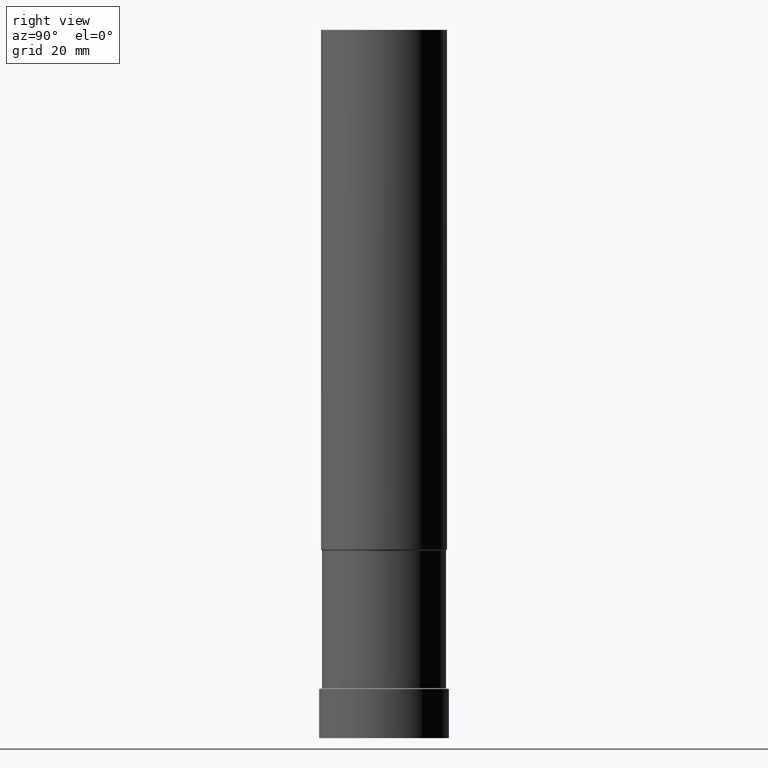
[diagram: clean part render]
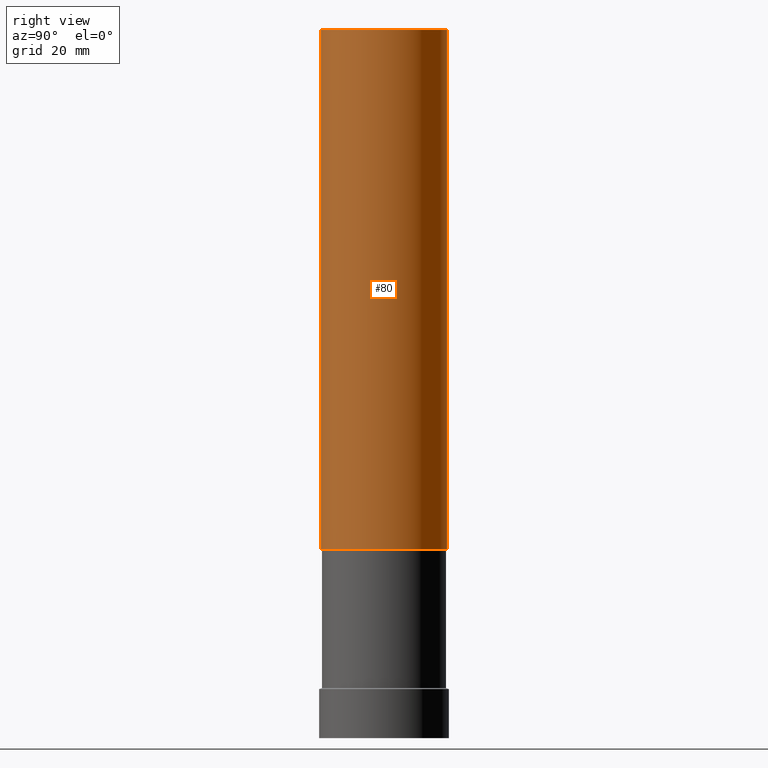
[diagram: same view with one face highlighted and labeled with its STEP entity id]
A machine part, right view. The second image highlights one B-rep face of the part: STEP entity #80.
In plain terms, the highlighted cylindrical surface (bore or boss wall) has radius 16 mm, axis along (0, 0, -1).
Its self-contained STEP definition (entity closure, byte-faithful):
#80=ADVANCED_FACE('',(#97,#98),#99,.T.);
#97=FACE_BOUND('',#116,.T.);
#98=FACE_BOUND('',#117,.T.);
#99=CYLINDRICAL_SURFACE('',#118,16.0);
#116=EDGE_LOOP('',(#145));
#117=EDGE_LOOP('',(#146));
#118=AXIS2_PLACEMENT_3D('',#147,#148,#149);
#145=ORIENTED_EDGE('',*,*,#159,.F.);
#146=ORIENTED_EDGE('',*,*,#158,.T.);
#147=CARTESIAN_POINT('',(-6.98048675513991E-015,-1.46326908161839E-012,114.0));
#148=DIRECTION('',(6.12323399573677E-017,1.28738160312661E-014,-1.0));
#149=DIRECTION('',(-7.93121032505865E-031,1.0,1.28738160312661E-014));
#158=EDGE_CURVE('',#168,#168,#169,.T.);
#159=EDGE_CURVE('',#170,#170,#171,.T.);
#168=VERTEX_POINT('',#180);
#169=CIRCLE('',#181,16.0);
#170=VERTEX_POINT('',#182);
#171=CIRCLE('',#183,16.0000000000001);
#180=CARTESIAN_POINT('',(-2.93915231795365E-015,15.9999999999994,48.0));
#181=AXIS2_PLACEMENT_3D('',#196,#197,#198);
#182=CARTESIAN_POINT('',(-1.10218211923262E-014,15.9999999999978,180.0));
#183=AXIS2_PLACEMENT_3D('',#199,#200,#201);
#196=CARTESIAN_POINT('',(-2.93915231795364E-015,-6.13597223554824E-013,47.9999999999998));
#197=DIRECTION('',(-6.12323399573677E-017,-1.28738160312661E-014,1.0));
#198=DIRECTION('',(-7.93121032505865E-031,1.0,1.28738160312661E-014));
#199=CARTESIAN_POINT('',(-1.10218211923262E-014,-2.31294093968195E-012,180.0));
#200=DIRECTION('',(-6.12323399573677E-017,-1.28738160312661E-014,1.0));
#201=DIRECTION('',(-7.93121032505865E-031,1.0,1.28738160312661E-014));